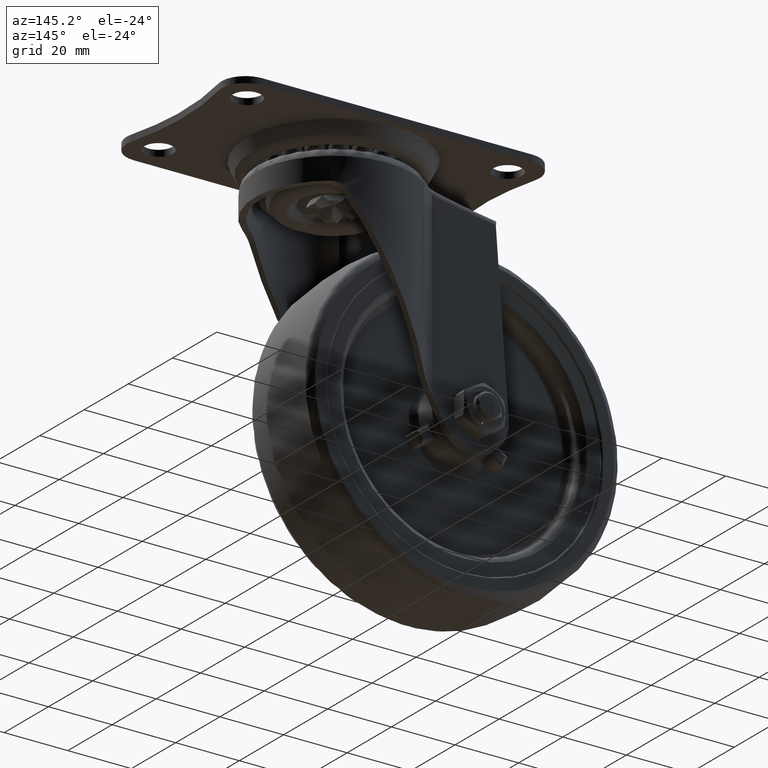
[diagram: clean part render]
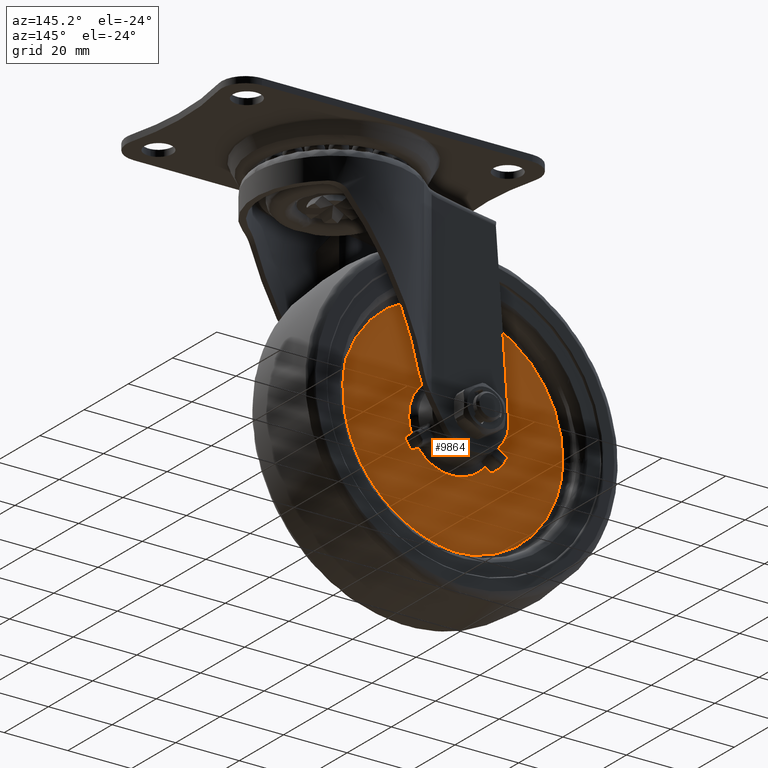
[diagram: same view with one face highlighted and labeled with its STEP entity id]
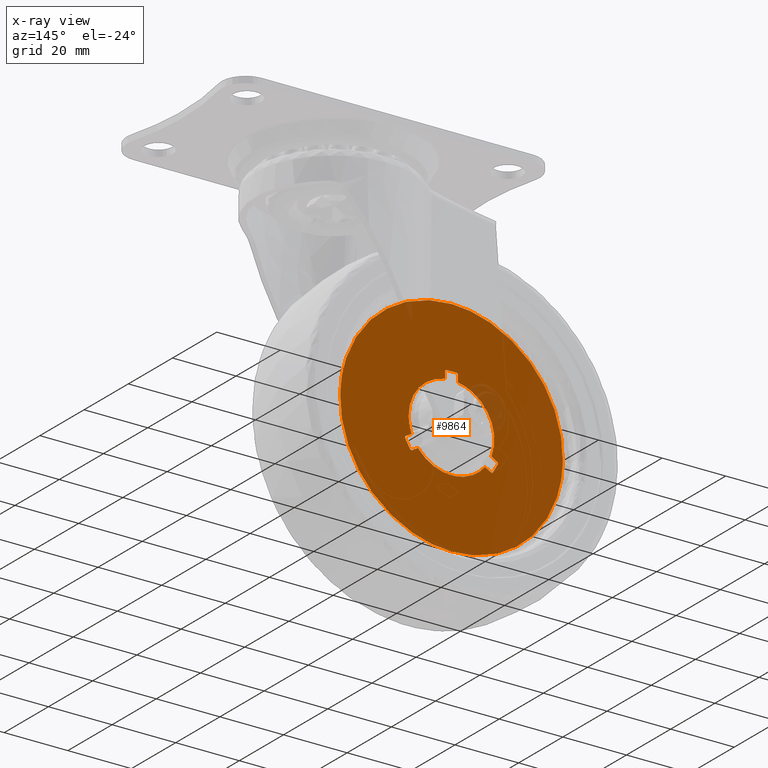
[diagram: x-ray of the same camera — body ghosted, the highlighted face saturated]
A machine part, auxiliary view. The second image highlights one B-rep face of the part: STEP entity #9864.
The next image is the same camera in x-ray: the body ghosted, the highlighted face saturated — about 3% of this face is hidden behind the body in this view.
In plain terms, the highlighted face is a freeform B-spline surface patch.
Its self-contained STEP definition (entity closure, byte-faithful):
#1975=CARTESIAN_POINT('',(-66.988343825886091,7.500000000000000,-70.879538187683551));
#1976=VERTEX_POINT('',#1975);
#1977=CARTESIAN_POINT('',(-32.0,7.500000000000000,-35.000603000000012));
#1978=VERTEX_POINT('',#1977);
#1979=CARTESIAN_POINT('',(-66.988343825886091,7.500000000000001,-70.879538187683551));
#1980=CARTESIAN_POINT('',(-66.999397000000002,7.500000000000001,-70.439838546747254));
#1981=CARTESIAN_POINT('',(-66.999397000000002,7.500000000000000,-70.0));
#1982=CARTESIAN_POINT('',(-66.999397000000016,7.500000000000000,-35.000602999999998));
#1983=CARTESIAN_POINT('',(-32.0,7.500000000000000,-35.000603000000012));
#1991=(BOUNDED_CURVE()B_SPLINE_CURVE(2,(#1979,#1980,#1981,#1982,#1983),.UNSPECIFIED.,.F.,.U.)B_SPLINE_CURVE_WITH_KNOTS((3,2,3),(0.745579891766315,0.750000000000000,1.0),.UNSPECIFIED.)CURVE()GEOMETRIC_REPRESENTATION_ITEM()RATIONAL_B_SPLINE_CURVE((0.989826157673682,0.994821521087728,1.0,0.707106781186548,1.0))REPRESENTATION_ITEM(''));
#1992=EDGE_CURVE('',#1976,#1978,#1991,.T.);
#2011=CARTESIAN_POINT('',(2.988343825886096,7.500000000000000,-69.120461812316449));
#2012=VERTEX_POINT('',#2011);
#2026=CARTESIAN_POINT('',(-32.0,7.500000000000000,-35.000603000000012));
#2027=CARTESIAN_POINT('',(2.130637633381907,7.499999999999999,-35.000603000000005));
#2028=CARTESIAN_POINT('',(2.988343825886096,7.500000000000001,-69.120461812316449));
#2036=(BOUNDED_CURVE()B_SPLINE_CURVE(2,(#2026,#2027,#2028),.UNSPECIFIED.,.F.,.U.)B_SPLINE_CURVE_WITH_KNOTS((3,3),(0.0,0.245579891766315),.UNSPECIFIED.)CURVE()GEOMETRIC_REPRESENTATION_ITEM()RATIONAL_B_SPLINE_CURVE((1.0,0.712285260098819,0.989826157673682))REPRESENTATION_ITEM(''));
#2037=EDGE_CURVE('',#1978,#2012,#2036,.T.);
#2065=CARTESIAN_POINT('',(-32.0,7.500000000000000,-104.999397000000000));
#2066=VERTEX_POINT('',#2065);
#2067=CARTESIAN_POINT('',(-32.0,7.500000000000000,-104.999397000000000));
#2068=CARTESIAN_POINT('',(-66.130637633381795,7.500000000000000,-104.999396999999970));
#2069=CARTESIAN_POINT('',(-66.988343825886091,7.500000000000000,-70.879538187683551));
#2077=(BOUNDED_CURVE()B_SPLINE_CURVE(2,(#2067,#2068,#2069),.UNSPECIFIED.,.F.,.U.)B_SPLINE_CURVE_WITH_KNOTS((3,3),(0.500000000000000,0.745579891766314),.UNSPECIFIED.)CURVE()GEOMETRIC_REPRESENTATION_ITEM()RATIONAL_B_SPLINE_CURVE((1.0,0.712285260098820,0.989826157673680))REPRESENTATION_ITEM(''));
#2078=EDGE_CURVE('',#2066,#1976,#2077,.T.);
#2080=CARTESIAN_POINT('',(2.988343825886096,7.500000000000001,-69.120461812316449));
#2081=CARTESIAN_POINT('',(2.999397000000002,7.500000000000001,-69.560161453252718));
#2082=CARTESIAN_POINT('',(2.999397000000001,7.500000000000000,-70.0));
#2083=CARTESIAN_POINT('',(2.999397000000001,7.500000000000000,-104.999396999999990));
#2084=CARTESIAN_POINT('',(-32.0,7.500000000000000,-104.999397000000000));
#2092=(BOUNDED_CURVE()B_SPLINE_CURVE(2,(#2080,#2081,#2082,#2083,#2084),.UNSPECIFIED.,.F.,.U.)B_SPLINE_CURVE_WITH_KNOTS((3,2,3),(0.245579891766315,0.250000000000000,0.500000000000000),.UNSPECIFIED.)CURVE()GEOMETRIC_REPRESENTATION_ITEM()RATIONAL_B_SPLINE_CURVE((0.989826157673682,0.994821521087728,1.0,0.707106781186548,1.0))REPRESENTATION_ITEM(''));
#2093=EDGE_CURVE('',#2012,#2066,#2092,.T.);
#8804=CARTESIAN_POINT('',(-45.017175456027999,7.500000000000000,-79.303394173471389));
#8805=VERTEX_POINT('',#8804);
#8812=CARTESIAN_POINT('',(-44.360388596062201,7.500000000000000,-79.445675734139400));
#8813=VERTEX_POINT('',#8812);
#8819=CARTESIAN_POINT('',(-44.360388596062208,7.500000000000000,-79.445675734139385));
#8820=CARTESIAN_POINT('',(-44.753341247709344,7.500000000000000,-79.672547206971686));
#8821=CARTESIAN_POINT('',(-45.017175456027978,7.500000000000000,-79.303394173471375));
#8829=(BOUNDED_CURVE()B_SPLINE_CURVE(2,(#8819,#8820,#8821),.UNSPECIFIED.,.F.,.U.)CURVE()GEOMETRIC_REPRESENTATION_ITEM()QUASI_UNIFORM_CURVE()RATIONAL_B_SPLINE_CURVE((1.0,0.740531551029516,1.0))REPRESENTATION_ITEM(''));
#8830=EDGE_CURVE('',#8813,#8805,#8829,.T.);
#8849=CARTESIAN_POINT('',(-46.565563007709287,7.500000000000000,-76.621508458685994));
#8850=VERTEX_POINT('',#8849);
#8858=CARTESIAN_POINT('',(-45.017175456028021,7.500000000000000,-79.303394173471403));
#8859=CARTESIAN_POINT('',(-45.921749886360729,7.500000000000000,-78.037726627506984));
#8860=CARTESIAN_POINT('',(-46.565563007709308,7.500000000000000,-76.621508458685994));
#8868=(BOUNDED_CURVE()B_SPLINE_CURVE(2,(#8858,#8859,#8860),.UNSPECIFIED.,.F.,.U.)CURVE()GEOMETRIC_REPRESENTATION_ITEM()QUASI_UNIFORM_CURVE()RATIONAL_B_SPLINE_CURVE((1.0,0.995306360363044,1.0))REPRESENTATION_ITEM(''));
#8869=EDGE_CURVE('',#8805,#8850,#8868,.T.);
#8888=CARTESIAN_POINT('',(-46.360389294386003,7.500000000000000,-75.981573692900895));
#8889=VERTEX_POINT('',#8888);
#8897=CARTESIAN_POINT('',(-46.565563007709251,7.500000000000000,-76.621508458685980));
#8898=CARTESIAN_POINT('',(-46.753341733993729,7.500000000000000,-76.208445047792466));
#8899=CARTESIAN_POINT('',(-46.360389294385982,7.500000000000000,-75.981573692900923));
#8907=(BOUNDED_CURVE()B_SPLINE_CURVE(2,(#8897,#8898,#8899),.UNSPECIFIED.,.F.,.U.)CURVE()GEOMETRIC_REPRESENTATION_ITEM()QUASI_UNIFORM_CURVE()RATIONAL_B_SPLINE_CURVE((1.0,0.740531729840645,1.0))REPRESENTATION_ITEM(''));
#8908=EDGE_CURVE('',#8850,#8889,#8907,.T.);
#8918=CARTESIAN_POINT('',(-44.534751579480293,7.500000000000000,-74.927540532208312));
#8919=VERTEX_POINT('',#8918);
#8937=CARTESIAN_POINT('',(-44.534751579480293,7.500000000000000,-74.927540532208312));
#8938=CARTESIAN_POINT('',(-46.360389294386003,7.500000000000000,-75.981573692900895));
#8939=QUASI_UNIFORM_CURVE('',1,(#8937,#8938),.UNSPECIFIED.,.F.,.U.);
#8940=EDGE_CURVE('',#8919,#8889,#8939,.T.);
#8952=CARTESIAN_POINT('',(-42.534751248458953,7.500000000000000,-78.391642806324086));
#8953=VERTEX_POINT('',#8952);
#8967=CARTESIAN_POINT('',(-44.360388596062201,7.500000000000000,-79.445675734139400));
#8968=CARTESIAN_POINT('',(-42.534751248458953,7.500000000000000,-78.391642806324086));
#8969=QUASI_UNIFORM_CURVE('',1,(#8967,#8968),.UNSPECIFIED.,.F.,.U.);
#8970=EDGE_CURVE('',#8813,#8953,#8969,.T.);
#9193=CARTESIAN_POINT('',(-33.548387967632443,7.500000000000000,-54.075098282824698));
#9194=VERTEX_POINT('',#9193);
#9201=CARTESIAN_POINT('',(-34.000000843643953,7.500000000000000,-54.572751608092787));
#9202=VERTEX_POINT('',#9201);
#9208=CARTESIAN_POINT('',(-34.000000843643917,7.500000000000000,-54.572751608092787));
#9209=CARTESIAN_POINT('',(-34.000000976687097,7.500000000000002,-54.119008892865821));
#9210=CARTESIAN_POINT('',(-33.548387967632443,7.500000000000000,-54.075098282824683));
#9218=(BOUNDED_CURVE()B_SPLINE_CURVE(2,(#9208,#9209,#9210),.UNSPECIFIED.,.F.,.U.)CURVE()GEOMETRIC_REPRESENTATION_ITEM()QUASI_UNIFORM_CURVE()RATIONAL_B_SPLINE_CURVE((1.0,0.740531551029543,1.0))REPRESENTATION_ITEM(''));
#9219=EDGE_CURVE('',#9202,#9194,#9218,.T.);
#9238=CARTESIAN_POINT('',(-30.451613032741101,7.500000000000000,-54.075098185557799));
#9239=VERTEX_POINT('',#9238);
#9247=CARTESIAN_POINT('',(-33.548387967632443,7.500000000000000,-54.075098282824769));
#9248=CARTESIAN_POINT('',(-32.000000504915427,7.500000000000000,-53.924547619525015));
#9249=CARTESIAN_POINT('',(-30.451613032741111,7.500000000000000,-54.075098185557863));
#9257=(BOUNDED_CURVE()B_SPLINE_CURVE(2,(#9247,#9248,#9249),.UNSPECIFIED.,.F.,.U.)CURVE()GEOMETRIC_REPRESENTATION_ITEM()QUASI_UNIFORM_CURVE()RATIONAL_B_SPLINE_CURVE((1.0,0.995306360363044,1.0))REPRESENTATION_ITEM(''));
#9258=EDGE_CURVE('',#9194,#9239,#9257,.T.);
#9277=CARTESIAN_POINT('',(-30.000000125467899,7.500000000000000,-54.572751367259102));
#9278=VERTEX_POINT('',#9277);
#9286=CARTESIAN_POINT('',(-30.451613032741101,7.500000000000000,-54.075098185557778));
#9287=CARTESIAN_POINT('',(-30.000000125467906,7.500000000000000,-54.119008757064904));
#9288=CARTESIAN_POINT('',(-30.000000125467899,7.500000000000000,-54.572751367259102));
#9296=(BOUNDED_CURVE()B_SPLINE_CURVE(2,(#9286,#9287,#9288),.UNSPECIFIED.,.F.,.U.)CURVE()GEOMETRIC_REPRESENTATION_ITEM()QUASI_UNIFORM_CURVE()RATIONAL_B_SPLINE_CURVE((1.0,0.740531628444593,1.0))REPRESENTATION_ITEM(''));
#9297=EDGE_CURVE('',#9239,#9278,#9296,.T.);
#9307=CARTESIAN_POINT('',(-29.999999489329749,7.500000000000000,-56.680816435938702));
#9308=VERTEX_POINT('',#9307);
#9323=CARTESIAN_POINT('',(-29.999999489329749,7.500000000000000,-56.680816435938702));
#9324=CARTESIAN_POINT('',(-30.000000125467899,7.500000000000000,-54.572751367259102));
#9325=QUASI_UNIFORM_CURVE('',1,(#9323,#9324),.UNSPECIFIED.,.F.,.U.);
#9326=EDGE_CURVE('',#9308,#9278,#9325,.T.);
#9338=CARTESIAN_POINT('',(-34.000000225532247,7.500000000000000,-56.680816393122498));
#9339=VERTEX_POINT('',#9338);
#9349=CARTESIAN_POINT('',(-34.000000843643953,7.500000000000000,-54.572751608092787));
#9350=CARTESIAN_POINT('',(-34.000000225532247,7.500000000000000,-56.680816393122498));
#9351=QUASI_UNIFORM_CURVE('',1,(#9349,#9350),.UNSPECIFIED.,.F.,.U.);
#9352=EDGE_CURVE('',#9202,#9339,#9351,.T.);
#9582=CARTESIAN_POINT('',(-17.434436576339600,7.500000000000000,-76.621507543703700));
#9583=VERTEX_POINT('',#9582);
#9590=CARTESIAN_POINT('',(-17.639610560293850,7.500000000000000,-75.981572657767501));
#9591=VERTEX_POINT('',#9590);
#9597=CARTESIAN_POINT('',(-17.639610560293839,7.500000000000000,-75.981572657767487));
#9598=CARTESIAN_POINT('',(-17.246657775603488,7.500000000000000,-76.208443900162237));
#9599=CARTESIAN_POINT('',(-17.434436576339600,7.500000000000000,-76.621507543703700));
#9607=(BOUNDED_CURVE()B_SPLINE_CURVE(2,(#9597,#9598,#9599),.UNSPECIFIED.,.F.,.U.)CURVE()GEOMETRIC_REPRESENTATION_ITEM()QUASI_UNIFORM_CURVE()RATIONAL_B_SPLINE_CURVE((1.0,0.740531551029495,1.0))REPRESENTATION_ITEM(''));
#9608=EDGE_CURVE('',#9591,#9583,#9607,.T.);
#9627=CARTESIAN_POINT('',(-18.982823959549648,7.500000000000000,-79.303393355756000));
#9628=VERTEX_POINT('',#9627);
#9636=CARTESIAN_POINT('',(-17.434436576339561,7.500000000000000,-76.621507543703729));
#9637=CARTESIAN_POINT('',(-18.078249608723890,7.500000000000000,-78.037725752967873));
#9638=CARTESIAN_POINT('',(-18.982823959549631,7.500000000000000,-79.303393355756015));
#9646=(BOUNDED_CURVE()B_SPLINE_CURVE(2,(#9636,#9637,#9638),.UNSPECIFIED.,.F.,.U.)CURVE()GEOMETRIC_REPRESENTATION_ITEM()QUASI_UNIFORM_CURVE()RATIONAL_B_SPLINE_CURVE((1.0,0.995306360363044,1.0))REPRESENTATION_ITEM(''));
#9647=EDGE_CURVE('',#9583,#9628,#9646,.T.);
#9666=CARTESIAN_POINT('',(-19.639610580146101,7.500000000000000,-79.445675090721792));
#9667=VERTEX_POINT('',#9666);
#9675=CARTESIAN_POINT('',(-18.982823959549680,7.500000000000000,-79.303393355755972));
#9676=CARTESIAN_POINT('',(-19.246658003615082,7.500000000000000,-79.672546208455501));
#9677=CARTESIAN_POINT('',(-19.639610580146091,7.500000000000000,-79.445675090721778));
#9685=(BOUNDED_CURVE()B_SPLINE_CURVE(2,(#9675,#9676,#9677),.UNSPECIFIED.,.F.,.U.)CURVE()GEOMETRIC_REPRESENTATION_ITEM()QUASI_UNIFORM_CURVE()RATIONAL_B_SPLINE_CURVE((1.0,0.740531729840565,1.0))REPRESENTATION_ITEM(''));
#9686=EDGE_CURVE('',#9628,#9667,#9685,.T.);
#9698=CARTESIAN_POINT('',(-19.465248526008800,7.500000000000000,-74.927540800553103));
#9699=VERTEX_POINT('',#9698);
#9711=CARTESIAN_POINT('',(-17.639610560293850,7.500000000000000,-75.981572657767501));
#9712=CARTESIAN_POINT('',(-19.465248526008800,7.500000000000000,-74.927540800553103));
#9713=QUASI_UNIFORM_CURVE('',1,(#9711,#9712),.UNSPECIFIED.,.F.,.U.);
#9714=EDGE_CURVE('',#9591,#9699,#9713,.T.);
#9725=CARTESIAN_POINT('',(-21.465248931189901,7.500000000000000,-78.391643031852794));
#9726=VERTEX_POINT('',#9725);
#9744=CARTESIAN_POINT('',(-21.465248931189901,7.500000000000000,-78.391643031852794));
#9745=CARTESIAN_POINT('',(-19.639610580146101,7.500000000000000,-79.445675090721792));
#9746=QUASI_UNIFORM_CURVE('',1,(#9744,#9745),.UNSPECIFIED.,.F.,.U.);
#9747=EDGE_CURVE('',#9726,#9667,#9746,.T.);
#9787=CARTESIAN_POINT('',(-21.465248931189858,7.500000000000000,-78.391643031852823));
#9788=CARTESIAN_POINT('',(-25.509314304780517,7.500000000000001,-83.468506031751659));
#9789=CARTESIAN_POINT('',(-32.000000144167352,7.500000000000000,-83.468505962275117));
#9790=CARTESIAN_POINT('',(-38.490685983554187,7.500000000000001,-83.468505892798603));
#9791=CARTESIAN_POINT('',(-42.534751248459010,7.500000000000000,-78.391642806324143));
#9799=(BOUNDED_CURVE()B_SPLINE_CURVE(2,(#9787,#9788,#9789,#9790,#9791),.UNSPECIFIED.,.F.,.U.)B_SPLINE_CURVE_WITH_KNOTS((3,2,3),(0.0,0.500000000000000,1.0),.UNSPECIFIED.)CURVE()GEOMETRIC_REPRESENTATION_ITEM()RATIONAL_B_SPLINE_CURVE((1.0,0.900848684017574,1.0,0.900848684017574,1.0))REPRESENTATION_ITEM(''));
#9800=EDGE_CURVE('',#9726,#8953,#9799,.T.);
#9805=CARTESIAN_POINT('',(-70.483677924681544,7.500000000000000,-31.504162718272649));
#9806=CARTESIAN_POINT('',(-70.483677924681544,7.500000000000000,-108.495838533403300));
#9807=CARTESIAN_POINT('',(6.483681052883261,7.500000000000000,-31.504162718272649));
#9808=CARTESIAN_POINT('',(6.483681052883261,7.500000000000000,-108.495838533403300));
#9809=B_SPLINE_SURFACE_WITH_KNOTS('',1,1,((#9805,#9807),(#9806,#9808)),.UNSPECIFIED.,.F.,.F.,.U.,(2,2),(2,2),(0.0,76.991675815130677),(0.0,76.967358977564800),.UNSPECIFIED.);
#9810=ORIENTED_EDGE('',*,*,#2037,.T.);
#9811=ORIENTED_EDGE('',*,*,#2093,.T.);
#9812=ORIENTED_EDGE('',*,*,#2078,.T.);
#9813=ORIENTED_EDGE('',*,*,#1992,.T.);
#9814=EDGE_LOOP('',(#9810,#9811,#9812,#9813));
#9815=FACE_OUTER_BOUND('',#9814,.T.);
#9816=CARTESIAN_POINT('',(-44.534751579480329,7.500000000000000,-74.927540532208326));
#9817=CARTESIAN_POINT('',(-46.909411222130565,7.500000000000001,-68.886845684164427));
#9818=CARTESIAN_POINT('',(-43.664068242268748,7.500000000000000,-63.265746894009837));
#9819=CARTESIAN_POINT('',(-40.418725262406923,7.500000000000001,-57.644648103855253));
#9820=CARTESIAN_POINT('',(-34.000000225532233,7.500000000000000,-56.680816393122612));
#9828=(BOUNDED_CURVE()B_SPLINE_CURVE(2,(#9816,#9817,#9818,#9819,#9820),.UNSPECIFIED.,.F.,.U.)B_SPLINE_CURVE_WITH_KNOTS((3,2,3),(0.0,0.500000000000000,1.0),.UNSPECIFIED.)CURVE()GEOMETRIC_REPRESENTATION_ITEM()RATIONAL_B_SPLINE_CURVE((1.0,0.900848684017576,1.0,0.900848684017576,1.0))REPRESENTATION_ITEM(''));
#9829=EDGE_CURVE('',#8919,#9339,#9828,.T.);
#9830=ORIENTED_EDGE('',*,*,#9829,.F.);
#9831=ORIENTED_EDGE('',*,*,#8940,.T.);
#9832=ORIENTED_EDGE('',*,*,#8908,.F.);
#9833=ORIENTED_EDGE('',*,*,#8869,.F.);
#9834=ORIENTED_EDGE('',*,*,#8830,.F.);
#9835=ORIENTED_EDGE('',*,*,#8970,.T.);
#9836=ORIENTED_EDGE('',*,*,#9800,.F.);
#9837=ORIENTED_EDGE('',*,*,#9747,.T.);
#9838=ORIENTED_EDGE('',*,*,#9686,.F.);
#9839=ORIENTED_EDGE('',*,*,#9647,.F.);
#9840=ORIENTED_EDGE('',*,*,#9608,.F.);
#9841=ORIENTED_EDGE('',*,*,#9714,.T.);
#9842=CARTESIAN_POINT('',(-29.999999489329760,7.500000000000000,-56.680816435938773));
#9843=CARTESIAN_POINT('',(-23.581274473088868,7.500000000000000,-57.644648284083921));
#9844=CARTESIAN_POINT('',(-20.335931613563918,7.500000000000000,-63.265747143715011));
#9845=CARTESIAN_POINT('',(-17.090588754038965,7.500000000000000,-68.886846003346108));
#9846=CARTESIAN_POINT('',(-19.465248526008779,7.500000000000000,-74.927540800553103));
#9854=(BOUNDED_CURVE()B_SPLINE_CURVE(2,(#9842,#9843,#9844,#9845,#9846),.UNSPECIFIED.,.F.,.U.)B_SPLINE_CURVE_WITH_KNOTS((3,2,3),(0.0,0.500000000000000,1.0),.UNSPECIFIED.)CURVE()GEOMETRIC_REPRESENTATION_ITEM()RATIONAL_B_SPLINE_CURVE((1.0,0.900848684017576,1.0,0.900848684017576,1.0))REPRESENTATION_ITEM(''));
#9855=EDGE_CURVE('',#9308,#9699,#9854,.T.);
#9856=ORIENTED_EDGE('',*,*,#9855,.F.);
#9857=ORIENTED_EDGE('',*,*,#9326,.T.);
#9858=ORIENTED_EDGE('',*,*,#9297,.F.);
#9859=ORIENTED_EDGE('',*,*,#9258,.F.);
#9860=ORIENTED_EDGE('',*,*,#9219,.F.);
#9861=ORIENTED_EDGE('',*,*,#9352,.T.);
#9862=EDGE_LOOP('',(#9830,#9831,#9832,#9833,#9834,#9835,#9836,#9837,#9838,#9839,#9840,#9841,#9856,#9857,#9858,#9859,#9860,#9861));
#9863=FACE_BOUND('',#9862,.T.);
#9864=ADVANCED_FACE('',(#9815,#9863),#9809,.F.);